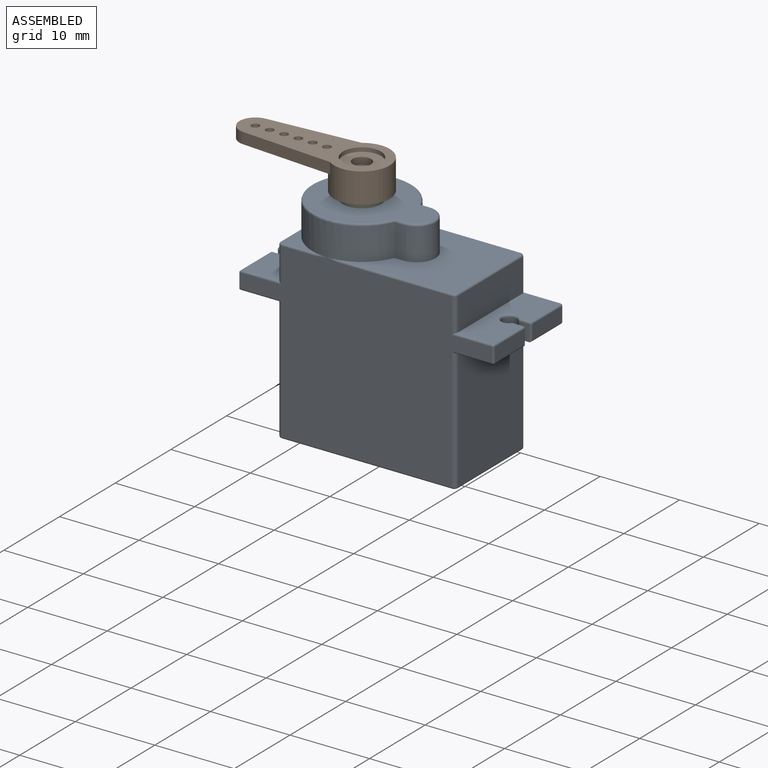
[diagram: assembled view]
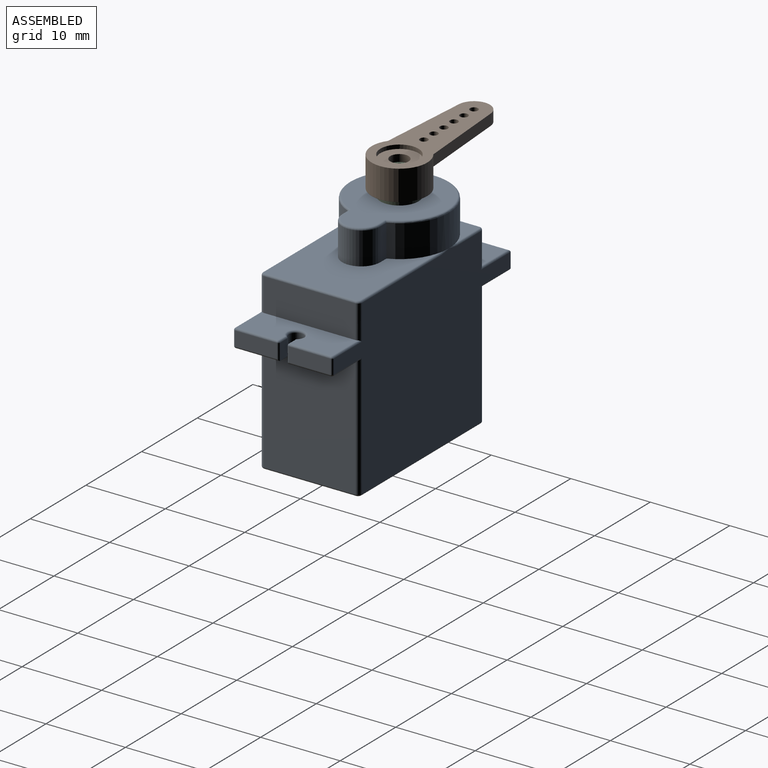
[diagram: assembled view, second angle]
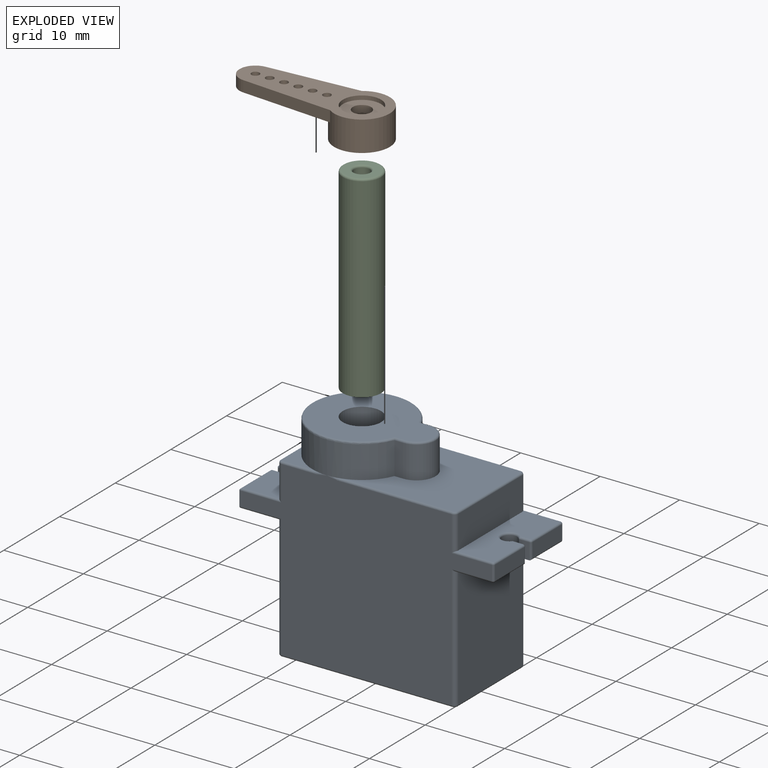
[diagram: exploded view]
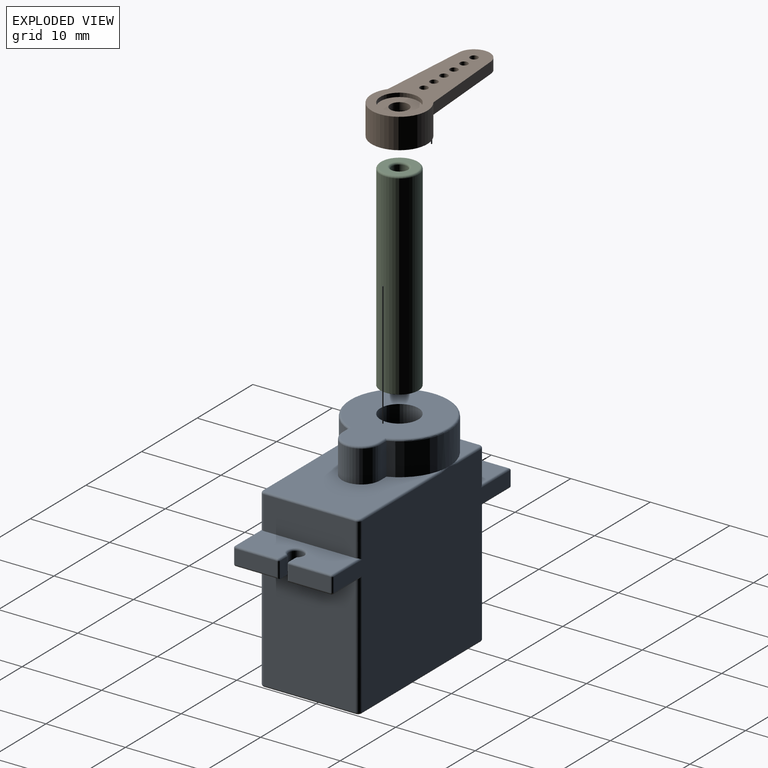
[diagram: exploded view, second angle]
ASSEMBLY  parts=3 mates=2
PART A: 120 faces, bbox 32.1x13.6x26.6 mm
  f0: plane 15.25x11.5mm, normal (1,0,0), area 175.4mm2, adj f29,f32,f33,f59
  f1: plane 15.25x11.5mm, normal (-1,0,0), area 175.4mm2, adj f22,f34,f35,f62
  f2: plane 14.15x12mm, normal (0,0,1), area 117.3mm2, adj f11,f12,f13,f14,f46,f47,f48,f49
  f3: plane 4.25x4.25mm, normal (0,0,1), area 5.9mm2, adj f14,f53,f54,f56
  f4: plane 4.25x4.25mm, normal (0,0,1), area 5.9mm2, adj f14,f41,f42,f43
  f5: plane 31.76x21.96mm, normal (0,1,0), area 483.3mm2, adj f18,f33,f34,f37,f39,f43,f44,f50
  f6: plane 11.57x4.47mm, normal (-1,0,0), area 48.1mm2, adj f21,f38,f39,f40,f41,f55,f56
  f7: plane 31.76x21.96mm, normal (0,-1,0), area 483.3mm2, adj f17,f32,f35,f36,f38,f45,f46,f52
  f8: plane 11.5x4.15mm, normal (1,0,0), area 47.7mm2, adj f28,f36,f37,f48
  f9: cylinder r=2.4mm len=21.5mm, axis (0,0,-1), area 324.2mm2, adj f15,f31
  f10: plane 21.9x12mm, normal (0,0,-1), area 259.6mm2, adj f30,f57,f58,f59,f60,f61,f62,f63
  f11: plane 4.05x1.09mm, normal (0,-1,0), area 4.4mm2, adj f2,f12,f14,f116
  f12: cylinder r=2.4mm len=4.8mm, axis (0,0,-1), area 30.5mm2, adj f2,f11,f13,f117
  f13: plane 4.05x1.09mm, normal (0,1,0), area 4.4mm2, adj f2,f12,f14,f119
  f14: cylinder r=6.25mm len=12.5mm, axis (0,0,-1), area 139.1mm2, adj f2,f3,f4,f11,f13,f40,f44,f45
  f15: plane 15.01x12mm, normal (0,0,1), area 106.5mm2, adj f9,f116,f117,f118,f119
  f16: plane 1.8x1.21mm, normal (0,1,0), area 2.2mm2, adj f79,f84,f87,f90
  f17: plane 5.5x1.8mm, normal (-1,0,0), area 9.9mm2, adj f7,f85,f86,f90
  f18: plane 5.5x1.8mm, normal (-1,0,0), area 9.9mm2, adj f5,f67,f68,f69
  f19: plane 1.8x1.21mm, normal (0,-1,0), area 2.2mm2, adj f69,f72,f73,f74
  f20: cylinder r=0.95mm len=1.9mm, axis (0,0,-1), area 8.4mm2, adj f74,f77,f78,f79
  f21: plane 12x4.62mm, normal (0,0,1), area 48.5mm2, adj f6,f38,f39,f65,f67,f72,f77,f81
  f22: plane 12x4.62mm, normal (0,0,-1), area 48.5mm2, adj f1,f34,f35,f66,f68,f73,f78,f82
  f23: plane 5.25x1.8mm, normal (1,0,0), area 9.4mm2, adj f109,f110,f114,f115
  f24: plane 2.05x1.21mm, normal (0,1,0), area 2.5mm2, adj f29,f105,f111,f115
  f25: cylinder r=0.95mm len=2.05mm, axis (0,0,-1), area 9.6mm2, adj f29,f101,f104,f105
  f26: plane 2.05x1.21mm, normal (0,-1,0), area 2.5mm2, adj f29,f98,f100,f101
  f27: plane 5.25x1.8mm, normal (1,0,0), area 9.4mm2, adj f93,f96,f97,f98
  f28: plane 12x4.62mm, normal (0,0,1), area 48.5mm2, adj f8,f36,f37,f92,f97,f100,f103,f104
  f29: plane 12x4.62mm, normal (0,0,-1), area 50.5mm2, adj f0,f24,f25,f26,f32,f33,f91,f96
  f30: cylinder r=1mm len=5mm, axis (0,0,-1), area 31.4mm2, adj f10,f31
  f31: plane 4.8x4.8mm, normal (0,0,1), area 15mm2, adj f9,f30
  f32: cylinder r=0.5mm len=15.5mm, axis (0,0,1), area 12mm2, adj f0,f7,f29,f57,f108
  f33: cylinder r=0.5mm len=15.5mm, axis (0,0,-1), area 12mm2, adj f0,f5,f29,f61,f91
  f34: cylinder r=0.5mm len=15.5mm, axis (0,0,1), area 12mm2, adj f1,f5,f22,f64,f66
  f35: cylinder r=0.5mm len=15.5mm, axis (0,0,-1), area 12mm2, adj f1,f7,f22,f60,f82
  f36: cylinder r=0.5mm len=4.4mm, axis (0,0,1), area 3.3mm2, adj f7,f8,f28,f47,f103
  f37: cylinder r=0.5mm len=4.4mm, axis (0,0,-1), area 3.3mm2, adj f5,f8,f28,f49,f92
  f38: cylinder r=0.5mm len=4.4mm, axis (0,0,-1), area 3.3mm2, adj f6,f7,f21,f54,f81
  f39: cylinder r=0.5mm len=4.4mm, axis (0,0,1), area 3.3mm2, adj f5,f6,f21,f42,f65
  f40: bspline ~1.84x0.28mm, area 0.2mm2, adj f6,f14,f41
  f41: cylinder r=0.25mm len=4mm, axis (0,1,0), area 1.6mm2, adj f4,f6,f40,f42
  f42: torus R=0.25mm, axis (0,0,1), area 0.3mm2, adj f4,f39,f41,f43
  f43: cylinder r=0.25mm len=4mm, axis (1,0,0), area 1.6mm2, adj f4,f5,f42,f44
  f44: bspline ~1.84x0.28mm, area 0.2mm2, adj f5,f14,f43
  f45: bspline ~1.84x0.28mm, area 0.2mm2, adj f7,f14,f46
  f46: cylinder r=0.25mm len=13.9mm, axis (-1,0,0), area 5.5mm2, adj f2,f7,f45,f47
  f47: torus R=0.25mm, axis (0,0,1), area 0.3mm2, adj f2,f36,f46,f48
  f48: cylinder r=0.25mm len=11.5mm, axis (0,-1,0), area 4.5mm2, adj f2,f8,f47,f49
  f49: torus R=0.25mm, axis (0,0,1), area 0.3mm2, adj f2,f37,f48,f51
  f50: bspline ~1.84x0.28mm, area 0.2mm2, adj f5,f14,f51
  f51: cylinder r=0.25mm len=13.9mm, axis (1,0,0), area 5.5mm2, adj f2,f5,f49,f50
  f52: bspline ~1.84x0.28mm, area 0.2mm2, adj f7,f14,f53
  f53: cylinder r=0.25mm len=4mm, axis (-1,0,0), area 1.6mm2, adj f3,f7,f52,f54
  f54: torus R=0.25mm, axis (0,0,1), area 0.3mm2, adj f3,f38,f53,f56
  f55: bspline ~1.84x0.28mm, area 0.2mm2, adj f6,f14,f56
  f56: cylinder r=0.25mm len=4mm, axis (0,1,0), area 1.6mm2, adj f3,f6,f54,f55
  f57: torus R=0.25mm, axis (0,0,1), area 0.3mm2, adj f10,f32,f58,f59
  f58: cylinder r=0.25mm len=21.4mm, axis (1,0,0), area 8.4mm2, adj f7,f10,f57,f60
  f59: cylinder r=0.25mm len=11.5mm, axis (0,1,0), area 4.5mm2, adj f0,f10,f57,f61
  f60: torus R=0.25mm, axis (0,0,1), area 0.3mm2, adj f10,f35,f58,f62
  f61: torus R=0.25mm, axis (0,0,1), area 0.3mm2, adj f10,f33,f59,f63
  f62: cylinder r=0.25mm len=11.5mm, axis (0,-1,0), area 4.5mm2, adj f1,f10,f60,f64
  f63: cylinder r=0.25mm len=21.4mm, axis (-1,0,0), area 8.4mm2, adj f5,f10,f61,f64
  f64: torus R=0.25mm, axis (0,0,1), area 0.3mm2, adj f10,f34,f62,f63
  f65: cylinder r=0.25mm len=5.3mm, axis (1,0,0), area 1.9mm2, adj f5,f21,f39,f67
  f66: cylinder r=0.25mm len=5.3mm, axis (-1,0,0), area 1.9mm2, adj f5,f22,f34,f68
  f67: cylinder r=0.25mm len=5.5mm, axis (0,1,0), area 2.1mm2, adj f18,f21,f65,f70
  f68: cylinder r=0.25mm len=5.5mm, axis (0,-1,0), area 2.1mm2, adj f18,f22,f66,f71
  f69: cylinder r=0.25mm len=1.8mm, axis (0,0,1), area 0.7mm2, adj f18,f19,f70,f71
  f70: sphere r=0.25mm, area 0.1mm2, adj f67,f69,f72
  f71: sphere r=0.25mm, area 0.1mm2, adj f68,f69,f73
  f72: cylinder r=0.25mm len=1.21mm, axis (-1,0,0), area 0.5mm2, adj f19,f21,f70,f75
  f73: cylinder r=0.25mm len=1.21mm, axis (1,0,0), area 0.5mm2, adj f19,f22,f71,f76
  f74: cylinder r=0.25mm len=1.8mm, axis (0,0,-1), area 0.4mm2, adj f19,f20,f75,f76
  f75: sphere r=0.25mm, area 0.1mm2, adj f72,f74,f77
  f76: sphere r=0.25mm, area 0.1mm2, adj f73,f74,f78
  f77: torus R=1.2mm, axis (0,0,1), area 2mm2, adj f20,f21,f75,f80
  f78: torus R=1.2mm, axis (0,0,1), area 2mm2, adj f20,f22,f76,f83
  f79: cylinder r=0.25mm len=1.8mm, axis (0,0,-1), area 0.4mm2, adj f16,f20,f80,f83
  f80: sphere r=0.25mm, area 0.1mm2, adj f77,f79,f84
  f81: cylinder r=0.25mm len=5.3mm, axis (1,0,0), area 1.9mm2, adj f7,f21,f38,f85
  f82: cylinder r=0.25mm len=5.3mm, axis (-1,0,0), area 1.9mm2, adj f7,f22,f35,f86
  f83: sphere r=0.25mm, area 0.1mm2, adj f78,f79,f87
  f84: cylinder r=0.25mm len=1.21mm, axis (1,0,0), area 0.5mm2, adj f16,f21,f80,f88
  f85: cylinder r=0.25mm len=5.5mm, axis (0,1,0), area 2.1mm2, adj f17,f21,f81,f88
  f86: cylinder r=0.25mm len=5.5mm, axis (0,-1,0), area 2.1mm2, adj f17,f22,f82,f89
  f87: cylinder r=0.25mm len=1.21mm, axis (-1,0,0), area 0.5mm2, adj f16,f22,f83,f89
  f88: sphere r=0.25mm, area 0.2mm2, adj f84,f85,f90
  f89: sphere r=0.25mm, area 0.1mm2, adj f86,f87,f90
  f90: cylinder r=0.25mm len=1.8mm, axis (0,0,-1), area 0.7mm2, adj f16,f17,f88,f89
  f91: cylinder r=0.25mm len=5.05mm, axis (1,0,0), area 1.9mm2, adj f5,f29,f33,f94
  f92: cylinder r=0.25mm len=5.05mm, axis (-1,0,0), area 1.9mm2, adj f5,f28,f37,f95
  f93: cylinder r=0.25mm len=1.8mm, axis (0,0,1), area 0.7mm2, adj f5,f27,f94,f95
  f94: sphere r=0.25mm, area 0.1mm2, adj f91,f93,f96
  f95: sphere r=0.25mm, area 0.1mm2, adj f92,f93,f97
  f96: cylinder r=0.25mm len=5.5mm, axis (0,1,0), area 2.1mm2, adj f27,f29,f94,f98
  f97: cylinder r=0.25mm len=5.25mm, axis (0,-1,0), area 2.1mm2, adj f27,f28,f95,f99
  f98: cylinder r=0.25mm len=2.05mm, axis (0,0,1), area 0.8mm2, adj f26,f27,f96,f99
  f99: sphere r=0.25mm, area 0.1mm2, adj f97,f98,f100
  f100: cylinder r=0.25mm len=1.21mm, axis (-1,0,0), area 0.5mm2, adj f26,f28,f99,f102
  f101: cylinder r=0.25mm len=2.05mm, axis (0,0,-1), area 0.5mm2, adj f25,f26,f29,f102
  f102: sphere r=0.25mm, area 0.1mm2, adj f100,f101,f104
  f103: cylinder r=0.25mm len=5.05mm, axis (-1,0,0), area 1.9mm2, adj f7,f28,f36,f106
  f104: torus R=1.2mm, axis (0,0,1), area 2mm2, adj f25,f28,f102,f107
  f105: cylinder r=0.25mm len=2.05mm, axis (0,0,-1), area 0.5mm2, adj f24,f25,f29,f107
  f106: sphere r=0.25mm, area 0.1mm2, adj f103,f109,f110
  f107: sphere r=0.25mm, area 0.1mm2, adj f104,f105,f111
  f108: cylinder r=0.25mm len=5.05mm, axis (1,0,0), area 1.9mm2, adj f7,f29,f32,f112
  f109: cylinder r=0.25mm len=1.8mm, axis (0,0,-1), area 0.7mm2, adj f7,f23,f106,f112
  f110: cylinder r=0.25mm len=5.25mm, axis (0,-1,0), area 2.1mm2, adj f23,f28,f106,f113
  f111: cylinder r=0.25mm len=1.21mm, axis (1,0,0), area 0.5mm2, adj f24,f28,f107,f113
  f112: sphere r=0.25mm, area 0.1mm2, adj f108,f109,f114
  f113: sphere r=0.25mm, area 0.1mm2, adj f110,f111,f115
  f114: cylinder r=0.25mm len=5.5mm, axis (0,1,0), area 2.1mm2, adj f23,f29,f112,f115
  f115: cylinder r=0.25mm len=2.05mm, axis (0,0,-1), area 0.8mm2, adj f23,f24,f113,f114
  f116: cylinder r=0.25mm len=1.26mm, axis (-1,0,0), area 0.5mm2, adj f11,f15,f117,f118
  f117: torus R=2.15mm, axis (0,0,1), area 2.8mm2, adj f12,f15,f116,f119
  f118: torus R=6mm, axis (0,0,1), area 13.4mm2, adj f14,f15,f116,f119
  f119: cylinder r=0.25mm len=1.26mm, axis (1,0,0), area 0.5mm2, adj f13,f15,f117,f118
PART B: 18 faces, bbox 18.9x7x3.8 mm
  f0: cylinder r=1.15mm len=2.3mm, axis (0,0,-1), area 6.5mm2, adj f1,f17
  f1: plane 4.8x4.8mm, normal (0,0,1), area 13.9mm2, adj f0,f8
  f2: plane 18.9x7mm, normal (0,0,-1), area 71.4mm2, adj f3,f4,f5,f7,f10,f11,f12,f13
  f3: plane 11.53x1.4mm, normal (-0.07,1,0), area 16.2mm2, adj f2,f4,f6,f7
  f4: cylinder r=2mm len=3.99mm, axis (0,0,-1), area 8.4mm2, adj f2,f3,f5,f6
  f5: plane 11.53x1.4mm, normal (-0.07,-1,0), area 16.2mm2, adj f2,f4,f6,f7
  f6: plane 13.38x5.71mm, normal (0,0,1), area 51mm2, adj f3,f4,f5,f7,f10,f11,f12,f13
  f7: cylinder r=3.5mm len=7mm, axis (0,0,-1), area 74.2mm2, adj f2,f3,f5,f6,f9
  f8: cylinder r=2.4mm len=4.8mm, axis (0,0,-1), area 36.2mm2, adj f1,f9
  f9: plane 7x7mm, normal (0,0,1), area 20.4mm2, adj f7,f8
  f10: cylinder r=0.5mm len=1.4mm, axis (0,0,-1), area 4.4mm2, adj f2,f6
  f11: cylinder r=0.5mm len=1.4mm, axis (0,0,-1), area 4.4mm2, adj f2,f6
  f12: cylinder r=0.5mm len=1.4mm, axis (0,0,-1), area 4.4mm2, adj f2,f6
  f13: cylinder r=0.5mm len=1.4mm, axis (0,0,-1), area 4.4mm2, adj f2,f6
  f14: cylinder r=0.5mm len=1.4mm, axis (0,0,-1), area 4.4mm2, adj f2,f6
  f15: cylinder r=0.5mm len=1.4mm, axis (0,0,-1), area 4.4mm2, adj f2,f6
  f16: cylinder r=2.4mm len=4.8mm, axis (0,0,-1), area 7.5mm2, adj f2,f17
  f17: plane 4.8x4.8mm, normal (0,0,-1), area 13.9mm2, adj f0,f16
PART C: 6 faces, bbox 5.2x5.2x24.8 mm
  f0: cylinder r=1mm len=24.55mm, axis (0,0,-1), area 154.3mm2, adj f3,f4
  f1: cylinder r=2.4mm len=24.55mm, axis (0,0,-1), area 370.2mm2, adj f3,f5
  f2: plane 4.3x4.3mm, normal (0,0,1), area 9.6mm2, adj f4,f5
  f3: plane 4.8x4.8mm, normal (0,0,-1), area 15mm2, adj f0,f1
  f4: torus R=1.25mm, axis (0,0,1), area 2.7mm2, adj f0,f2
  f5: torus R=2.15mm, axis (0,0,1), area 5.7mm2, adj f1,f2
PLACE A at identity fixed
PLACE B rot(axis=(1,0,0),180deg) t=(39.74,0,31.2)mm
PLACE C at identity
MATE revolute A.f30 <-> C.f0  axis (0,0,1) through (-4.95,0,5)mm
MATE fastened C.f1 <-> B.f0  axis (0,0,1) through (-4.95,0,29.8)mm
